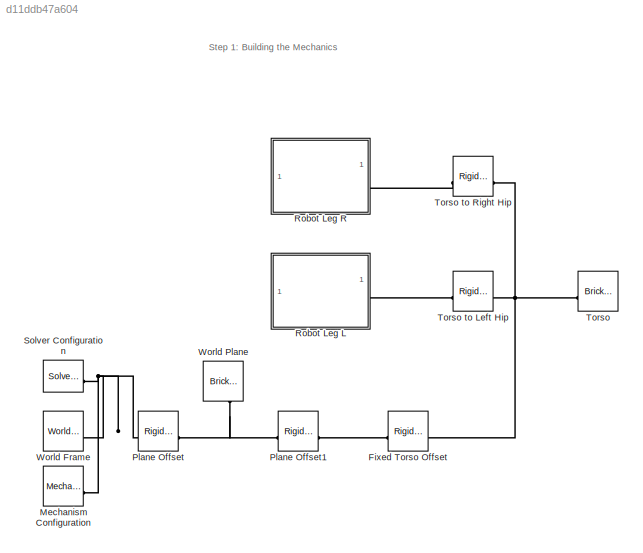
MODEL slx_d11ddb47a604
KIND model
CONFIG AbsTol = auto
CONFIG EnableMultiTasking = off
CONFIG FixedStep = auto
CONFIG MaxStep = auto
CONFIG MinStep = auto
CONFIG PreLoadFcn = robotParameters\nload jointAngs
CONFIG RelTol = 1e-3
CONFIG SampleTimeConstraint = Unconstrained
CONFIG SolverName = VariableStepAuto
CONFIG StartTime = 0.0
CONFIG StopTime = 10.0
BLOCK [Reference] Fixed Torso Offset  REF=sm_lib/Frames and
Transforms/Rigid
Transform
  SourceBlock = sm_lib/Frames and\nTransforms/Rigid\nTransform
  SourceType = Rigid\nTransform
BLOCK [Reference] Mechanism Configuration  REF=sm_lib/Utilities/Mechanism
Configuration
  SourceBlock = sm_lib/Utilities/Mechanism\nConfiguration
  SourceType = Mechanism\nConfiguration
BLOCK [Reference] Plane Offset  REF=sm_lib/Frames and
Transforms/Rigid
Transform
  SourceBlock = sm_lib/Frames and\nTransforms/Rigid\nTransform
  SourceType = Rigid\nTransform
BLOCK [Reference] Plane Offset1  REF=sm_lib/Frames and
Transforms/Rigid
Transform
  SourceBlock = sm_lib/Frames and\nTransforms/Rigid\nTransform
  SourceType = Rigid\nTransform
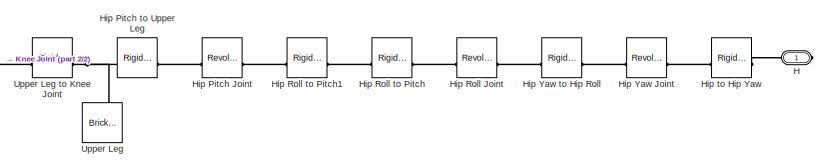
[diagram: Robot Leg L - part 1/2, right side, full height]
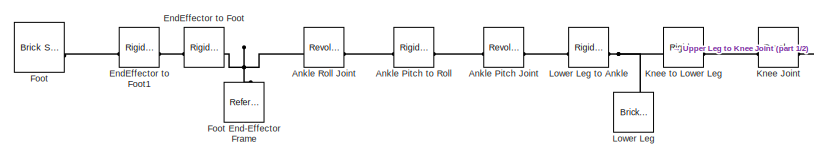
[diagram: Robot Leg L - part 2/2, left side, full height]
BLOCK [SubSystem] Robot Leg L
BLOCK [Reference] Robot Leg L/Ankle Pitch Joint  REF=sm_lib/Joints/Revolute Joint
  SourceBlock = sm_lib/Joints/Revolute Joint
  SourceType = Revolute Joint
BLOCK [Reference] Robot Leg L/Ankle Pitch to Roll  REF=sm_lib/Frames and
Transforms/Rigid
Transform
  SourceBlock = sm_lib/Frames and\nTransforms/Rigid\nTransform
  SourceType = Rigid\nTransform
BLOCK [Reference] Robot Leg L/Ankle Roll Joint  REF=sm_lib/Joints/Revolute Joint
  SourceBlock = sm_lib/Joints/Revolute Joint
  SourceType = Revolute Joint
BLOCK [Reference] Robot Leg L/EndEffector to Foot  REF=sm_lib/Frames and
Transforms/Rigid
Transform
  NameLocation = top
  SourceBlock = sm_lib/Frames and\nTransforms/Rigid\nTransform
  SourceType = Rigid\nTransform
BLOCK [Reference] Robot Leg L/EndEffector to Foot1  REF=sm_lib/Frames and
Transforms/Rigid
Transform
  SourceBlock = sm_lib/Frames and\nTransforms/Rigid\nTransform
  SourceType = Rigid\nTransform
BLOCK [Reference] Robot Leg L/Foot  REF=sm_lib/Body Elements/Brick Solid
  SourceBlock = sm_lib/Body Elements/Brick Solid
  SourceType = Brick Solid
BLOCK [Reference] Robot Leg L/Foot End-Effector Frame  REF=sm_lib/Frames and
Transforms/Reference
Frame
  NameLocation = left
  SourceBlock = sm_lib/Frames and\nTransforms/Reference\nFrame
  SourceType = Reference\nFrame
BLOCK [PMIOPort] Robot Leg L/H
  Side = Right
BLOCK [Reference] Robot Leg L/Hip Pitch Joint  REF=sm_lib/Joints/Revolute Joint
  SourceBlock = sm_lib/Joints/Revolute Joint
  SourceType = Revolute Joint
BLOCK [Reference] Robot Leg L/Hip Pitch to Upper Leg  REF=sm_lib/Frames and
Transforms/Rigid
Transform
  NameLocation = top
  SourceBlock = sm_lib/Frames and\nTransforms/Rigid\nTransform
  SourceType = Rigid\nTransform
BLOCK [Reference] Robot Leg L/Hip Roll Joint  REF=sm_lib/Joints/Revolute Joint
  SourceBlock = sm_lib/Joints/Revolute Joint
  SourceType = Revolute Joint
BLOCK [Reference] Robot Leg L/Hip Roll to Pitch  REF=sm_lib/Frames and
Transforms/Rigid
Transform
  SourceBlock = sm_lib/Frames and\nTransforms/Rigid\nTransform
  SourceType = Rigid\nTransform
BLOCK [Reference] Robot Leg L/Hip Roll to Pitch1  REF=sm_lib/Frames and
Transforms/Rigid
Transform
  SourceBlock = sm_lib/Frames and\nTransforms/Rigid\nTransform
  SourceType = Rigid\nTransform
BLOCK [Reference] Robot Leg L/Hip Yaw Joint  REF=sm_lib/Joints/Revolute Joint
  SourceBlock = sm_lib/Joints/Revolute Joint
  SourceType = Revolute Joint
BLOCK [Reference] Robot Leg L/Hip Yaw to Hip Roll  REF=sm_lib/Frames and
Transforms/Rigid
Transform
  NameLocation = top
  SourceBlock = sm_lib/Frames and\nTransforms/Rigid\nTransform
  SourceType = Rigid\nTransform
BLOCK [Reference] Robot Leg L/Hip to Hip Yaw  REF=sm_lib/Frames and
Transforms/Rigid
Transform
  NameLocation = top
  SourceBlock = sm_lib/Frames and\nTransforms/Rigid\nTransform
  SourceType = Rigid\nTransform
BLOCK [Reference] Robot Leg L/Knee Joint  REF=sm_lib/Joints/Revolute Joint
  SourceBlock = sm_lib/Joints/Revolute Joint
  SourceType = Revolute Joint
BLOCK [Reference] Robot Leg L/Knee to Lower Leg  REF=sm_lib/Frames and
Transforms/Rigid
Transform
  NameLocation = top
  SourceBlock = sm_lib/Frames and\nTransforms/Rigid\nTransform
  SourceType = Rigid\nTransform
BLOCK [Reference] Robot Leg L/Lower Leg  REF=sm_lib/Body Elements/Brick Solid
  NameLocation = right
  SourceBlock = sm_lib/Body Elements/Brick Solid
  SourceType = Brick Solid
BLOCK [Reference] Robot Leg L/Lower Leg to Ankle  REF=sm_lib/Frames and
Transforms/Rigid
Transform
  NameLocation = top
  SourceBlock = sm_lib/Frames and\nTransforms/Rigid\nTransform
  SourceType = Rigid\nTransform
BLOCK [Reference] Robot Leg L/Upper Leg  REF=sm_lib/Body Elements/Brick Solid
  NameLocation = right
  SourceBlock = sm_lib/Body Elements/Brick Solid
  SourceType = Brick Solid
BLOCK [Reference] Robot Leg L/Upper Leg to Knee Joint  REF=sm_lib/Frames and
Transforms/Rigid
Transform
  NameLocation = top
  SourceBlock = sm_lib/Frames and\nTransforms/Rigid\nTransform
  SourceType = Rigid\nTransform
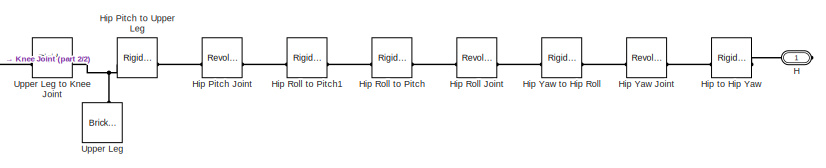
[diagram: Robot Leg R - part 1/2, right side, full height]
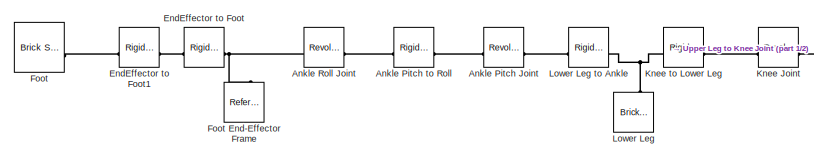
[diagram: Robot Leg R - part 2/2, left side, full height]
BLOCK [SubSystem] Robot Leg R
BLOCK [Reference] Robot Leg R/Ankle Pitch Joint  REF=sm_lib/Joints/Revolute Joint
  SourceBlock = sm_lib/Joints/Revolute Joint
  SourceType = Revolute Joint
BLOCK [Reference] Robot Leg R/Ankle Pitch to Roll  REF=sm_lib/Frames and
Transforms/Rigid
Transform
  SourceBlock = sm_lib/Frames and\nTransforms/Rigid\nTransform
  SourceType = Rigid\nTransform
BLOCK [Reference] Robot Leg R/Ankle Roll Joint  REF=sm_lib/Joints/Revolute Joint
  SourceBlock = sm_lib/Joints/Revolute Joint
  SourceType = Revolute Joint
BLOCK [Reference] Robot Leg R/EndEffector to Foot  REF=sm_lib/Frames and
Transforms/Rigid
Transform
  NameLocation = top
  SourceBlock = sm_lib/Frames and\nTransforms/Rigid\nTransform
  SourceType = Rigid\nTransform
BLOCK [Reference] Robot Leg R/EndEffector to Foot1  REF=sm_lib/Frames and
Transforms/Rigid
Transform
  SourceBlock = sm_lib/Frames and\nTransforms/Rigid\nTransform
  SourceType = Rigid\nTransform
BLOCK [Reference] Robot Leg R/Foot  REF=sm_lib/Body Elements/Brick Solid
  SourceBlock = sm_lib/Body Elements/Brick Solid
  SourceType = Brick Solid
BLOCK [Reference] Robot Leg R/Foot End-Effector Frame  REF=sm_lib/Frames and
Transforms/Reference
Frame
  NameLocation = left
  SourceBlock = sm_lib/Frames and\nTransforms/Reference\nFrame
  SourceType = Reference\nFrame
BLOCK [PMIOPort] Robot Leg R/H
  Side = Right
BLOCK [Reference] Robot Leg R/Hip Pitch Joint  REF=sm_lib/Joints/Revolute Joint
  SourceBlock = sm_lib/Joints/Revolute Joint
  SourceType = Revolute Joint
BLOCK [Reference] Robot Leg R/Hip Pitch to Upper Leg  REF=sm_lib/Frames and
Transforms/Rigid
Transform
  NameLocation = top
  SourceBlock = sm_lib/Frames and\nTransforms/Rigid\nTransform
  SourceType = Rigid\nTransform
BLOCK [Reference] Robot Leg R/Hip Roll Joint  REF=sm_lib/Joints/Revolute Joint
  SourceBlock = sm_lib/Joints/Revolute Joint
  SourceType = Revolute Joint
BLOCK [Reference] Robot Leg R/Hip Roll to Pitch  REF=sm_lib/Frames and
Transforms/Rigid
Transform
  SourceBlock = sm_lib/Frames and\nTransforms/Rigid\nTransform
  SourceType = Rigid\nTransform
BLOCK [Reference] Robot Leg R/Hip Roll to Pitch1  REF=sm_lib/Frames and
Transforms/Rigid
Transform
  SourceBlock = sm_lib/Frames and\nTransforms/Rigid\nTransform
  SourceType = Rigid\nTransform
BLOCK [Reference] Robot Leg R/Hip Yaw Joint  REF=sm_lib/Joints/Revolute Joint
  SourceBlock = sm_lib/Joints/Revolute Joint
  SourceType = Revolute Joint
BLOCK [Reference] Robot Leg R/Hip Yaw to Hip Roll  REF=sm_lib/Frames and
Transforms/Rigid
Transform
  NameLocation = top
  SourceBlock = sm_lib/Frames and\nTransforms/Rigid\nTransform
  SourceType = Rigid\nTransform
BLOCK [Reference] Robot Leg R/Hip to Hip Yaw  REF=sm_lib/Frames and
Transforms/Rigid
Transform
  NameLocation = top
  SourceBlock = sm_lib/Frames and\nTransforms/Rigid\nTransform
  SourceType = Rigid\nTransform
BLOCK [Reference] Robot Leg R/Knee Joint  REF=sm_lib/Joints/Revolute Joint
  SourceBlock = sm_lib/Joints/Revolute Joint
  SourceType = Revolute Joint
BLOCK [Reference] Robot Leg R/Knee to Lower Leg  REF=sm_lib/Frames and
Transforms/Rigid
Transform
  NameLocation = top
  SourceBlock = sm_lib/Frames and\nTransforms/Rigid\nTransform
  SourceType = Rigid\nTransform
BLOCK [Reference] Robot Leg R/Lower Leg  REF=sm_lib/Body Elements/Brick Solid
  NameLocation = right
  SourceBlock = sm_lib/Body Elements/Brick Solid
  SourceType = Brick Solid
BLOCK [Reference] Robot Leg R/Lower Leg to Ankle  REF=sm_lib/Frames and
Transforms/Rigid
Transform
  NameLocation = top
  SourceBlock = sm_lib/Frames and\nTransforms/Rigid\nTransform
  SourceType = Rigid\nTransform
BLOCK [Reference] Robot Leg R/Upper Leg  REF=sm_lib/Body Elements/Brick Solid
  NameLocation = right
  SourceBlock = sm_lib/Body Elements/Brick Solid
  SourceType = Brick Solid
BLOCK [Reference] Robot Leg R/Upper Leg to Knee Joint  REF=sm_lib/Frames and
Transforms/Rigid
Transform
  NameLocation = top
  SourceBlock = sm_lib/Frames and\nTransforms/Rigid\nTransform
  SourceType = Rigid\nTransform
BLOCK [Reference] Solver Configuration  REF=nesl_utility/Solver
Configuration
  SourceBlock = nesl_utility/Solver\nConfiguration
  SourceType = Solver\nConfiguration
BLOCK [Reference] Torso  REF=sm_lib/Body Elements/Brick Solid
  SourceBlock = sm_lib/Body Elements/Brick Solid
  SourceType = Brick Solid
BLOCK [Reference] Torso to Left Hip  REF=sm_lib/Frames and
Transforms/Rigid
Transform
  SourceBlock = sm_lib/Frames and\nTransforms/Rigid\nTransform
  SourceType = Rigid\nTransform
BLOCK [Reference] Torso to Right Hip  REF=sm_lib/Frames and
Transforms/Rigid
Transform
  SourceBlock = sm_lib/Frames and\nTransforms/Rigid\nTransform
  SourceType = Rigid\nTransform
BLOCK [Reference] World Frame  REF=sm_lib/Frames and
Transforms/World Frame
  SourceBlock = sm_lib/Frames and\nTransforms/World Frame
  SourceType = World Frame
BLOCK [Reference] World Plane  REF=sm_lib/Body Elements/Brick Solid
  NameLocation = right
  SourceBlock = sm_lib/Body Elements/Brick Solid
  SourceType = Brick Solid
ANNOTATION (root): Step 1: Building the Mechanics
PLINE Fixed Torso Offset:LConn1 -- Plane Offset1:RConn1
PNET net1: Fixed Torso Offset:RConn1 -- Torso to Left Hip:LConn1 -- Torso to Right Hip:LConn1 -- Torso:RConn1
PNET net2: Mechanism Configuration:RConn1 -- Plane Offset:LConn1 -- Solver Configuration:RConn1 -- World Frame:RConn1
PNET net3: Plane Offset1:LConn1 -- Plane Offset:RConn1 -- World Plane:RConn1
PLINE Robot Leg L/Ankle Pitch Joint:LConn1 -- Robot Leg L/Ankle Pitch to Roll:LConn1
PLINE Robot Leg L/Ankle Pitch Joint:RConn1 -- Robot Leg L/Lower Leg to Ankle:RConn1
PLINE Robot Leg L/Ankle Pitch to Roll:RConn1 -- Robot Leg L/Ankle Roll Joint:RConn1
PNET net4: Robot Leg L/Ankle Roll Joint:LConn1 -- Robot Leg L/EndEffector to Foot:LConn1 -- Robot Leg L/Foot End-Effector Frame:RConn1
PLINE Robot Leg L/EndEffector to Foot1:LConn1 -- Robot Leg L/EndEffector to Foot:RConn1
PLINE Robot Leg L/EndEffector to Foot1:RConn1 -- Robot Leg L/Foot:LConn1
PLINE Robot Leg L/H:RConn1 -- Robot Leg L/Hip to Hip Yaw:LConn1
PLINE Robot Leg L/Hip Pitch Joint:LConn1 -- Robot Leg L/Hip Pitch to Upper Leg:LConn1
PLINE Robot Leg L/Hip Pitch Joint:RConn1 -- Robot Leg L/Hip Roll to Pitch1:RConn1
PNET net5: Robot Leg L/Hip Pitch to Upper Leg:RConn1 -- Robot Leg L/Upper Leg to Knee Joint:LConn1 -- Robot Leg L/Upper Leg:RConn1
PLINE Robot Leg L/Hip Roll Joint:LConn1 -- Robot Leg L/Hip Roll to Pitch:LConn1
PLINE Robot Leg L/Hip Roll Joint:RConn1 -- Robot Leg L/Hip Yaw to Hip Roll:RConn1
PLINE Robot Leg L/Hip Roll to Pitch1:LConn1 -- Robot Leg L/Hip Roll to Pitch:RConn1
PLINE Robot Leg L/Hip Yaw Joint:LConn1 -- Robot Leg L/Hip Yaw to Hip Roll:LConn1
PLINE Robot Leg L/Hip Yaw Joint:RConn1 -- Robot Leg L/Hip to Hip Yaw:RConn1
PLINE Robot Leg L/Knee Joint:LConn1 -- Robot Leg L/Knee to Lower Leg:LConn1
PLINE Robot Leg L/Knee Joint:RConn1 -- Robot Leg L/Upper Leg to Knee Joint:RConn1
PNET net6: Robot Leg L/Knee to Lower Leg:RConn1 -- Robot Leg L/Lower Leg to Ankle:LConn1 -- Robot Leg L/Lower Leg:RConn1
PLINE Robot Leg L:RConn1 -- Torso to Left Hip:RConn1
PLINE Robot Leg R/Ankle Pitch Joint:LConn1 -- Robot Leg R/Ankle Pitch to Roll:LConn1
PLINE Robot Leg R/Ankle Pitch Joint:RConn1 -- Robot Leg R/Lower Leg to Ankle:RConn1
PLINE Robot Leg R/Ankle Pitch to Roll:RConn1 -- Robot Leg R/Ankle Roll Joint:RConn1
PNET net7: Robot Leg R/Ankle Roll Joint:LConn1 -- Robot Leg R/EndEffector to Foot:LConn1 -- Robot Leg R/Foot End-Effector Frame:RConn1
PLINE Robot Leg R/EndEffector to Foot1:LConn1 -- Robot Leg R/EndEffector to Foot:RConn1
PLINE Robot Leg R/EndEffector to Foot1:RConn1 -- Robot Leg R/Foot:LConn1
PLINE Robot Leg R/H:RConn1 -- Robot Leg R/Hip to Hip Yaw:LConn1
PLINE Robot Leg R/Hip Pitch Joint:LConn1 -- Robot Leg R/Hip Pitch to Upper Leg:LConn1
PLINE Robot Leg R/Hip Pitch Joint:RConn1 -- Robot Leg R/Hip Roll to Pitch1:RConn1
PNET net8: Robot Leg R/Hip Pitch to Upper Leg:RConn1 -- Robot Leg R/Upper Leg to Knee Joint:LConn1 -- Robot Leg R/Upper Leg:RConn1
PLINE Robot Leg R/Hip Roll Joint:LConn1 -- Robot Leg R/Hip Roll to Pitch:LConn1
PLINE Robot Leg R/Hip Roll Joint:RConn1 -- Robot Leg R/Hip Yaw to Hip Roll:RConn1
PLINE Robot Leg R/Hip Roll to Pitch1:LConn1 -- Robot Leg R/Hip Roll to Pitch:RConn1
PLINE Robot Leg R/Hip Yaw Joint:LConn1 -- Robot Leg R/Hip Yaw to Hip Roll:LConn1
PLINE Robot Leg R/Hip Yaw Joint:RConn1 -- Robot Leg R/Hip to Hip Yaw:RConn1
PLINE Robot Leg R/Knee Joint:LConn1 -- Robot Leg R/Knee to Lower Leg:LConn1
PLINE Robot Leg R/Knee Joint:RConn1 -- Robot Leg R/Upper Leg to Knee Joint:RConn1
PNET net9: Robot Leg R/Knee to Lower Leg:RConn1 -- Robot Leg R/Lower Leg to Ankle:LConn1 -- Robot Leg R/Lower Leg:RConn1
PLINE Robot Leg R:RConn1 -- Torso to Right Hip:RConn1
note: PNET lines group multi-terminal physical nets as a canonical sorted terminal list (undirected conserving connections); 2-terminal nets keep the pairwise PLINE form
